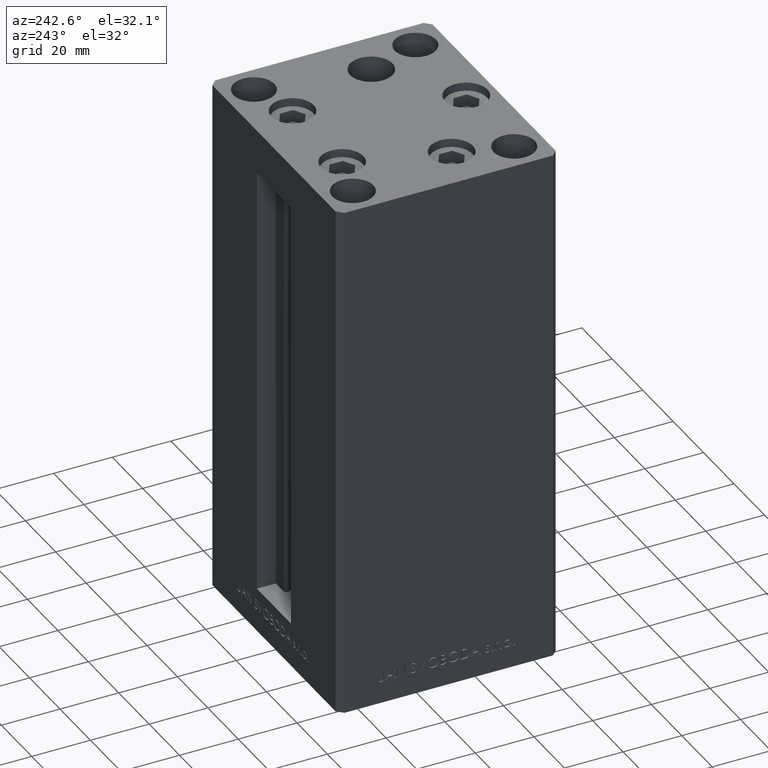
[diagram: clean part render]
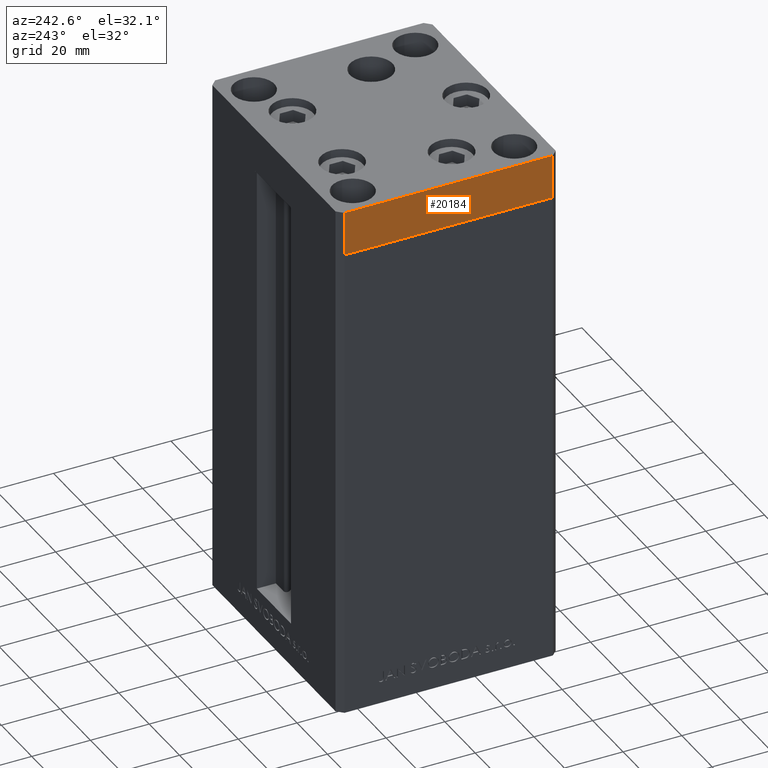
[diagram: same view with one face highlighted and labeled with its STEP entity id]
A machine part, auxiliary view. The second image highlights one B-rep face of the part: STEP entity #20184.
In plain terms, the highlighted planar face has unit normal (-1, -0, 0).
Its self-contained STEP definition (entity closure, byte-faithful):
#1008 = CARTESIAN_POINT ( 'NONE',  ( -42.50000000000000000, -35.50000000000000711, -15.00000000000000000 ) ) ;
#1484 = DIRECTION ( 'NONE',  ( 0.000000000000000000, 0.000000000000000000, 1.000000000000000000 ) ) ;
#1793 = EDGE_LOOP ( 'NONE', ( #45299, #43111, #8110, #47920 ) ) ;
#2662 = FACE_OUTER_BOUND ( 'NONE', #1793, .T. ) ;
#2695 = VERTEX_POINT ( 'NONE', #38412 ) ;
#6538 = AXIS2_PLACEMENT_3D ( 'NONE', #9347, #25187, #29136 ) ;
#6757 = VERTEX_POINT ( 'NONE', #13402 ) ;
#6833 = LINE ( 'NONE', #37736, #39202 ) ;
#7070 = DIRECTION ( 'NONE',  ( 0.000000000000000000, 0.000000000000000000, 1.000000000000000000 ) ) ;
#8110 = ORIENTED_EDGE ( 'NONE', *, *, #15498, .T. ) ;
#8155 = LINE ( 'NONE', #15827, #29271 ) ;
#9347 = CARTESIAN_POINT ( 'NONE',  ( -42.50000000000000711, 35.49999999999997158, -15.00000000000000000 ) ) ;
#10460 = VECTOR ( 'NONE', #17947, 1000.000000000000000 ) ;
#10593 = EDGE_CURVE ( 'NONE', #44240, #2695, #8155, .T. ) ;
#13402 = CARTESIAN_POINT ( 'NONE',  ( -42.50000000000000711, 35.49999999999997158, 0.000000000000000000 ) ) ;
#13509 = CARTESIAN_POINT ( 'NONE',  ( -42.50000000000000711, 35.49999999999997158, -15.00000000000000000 ) ) ;
#13783 = PLANE ( 'NONE',  #6538 ) ;
#15498 = EDGE_CURVE ( 'NONE', #41266, #44240, #21416, .T. ) ;
#15827 = CARTESIAN_POINT ( 'NONE',  ( -42.50000000000000000, -35.50000000000000711, -15.00000000000000000 ) ) ;
#17947 = DIRECTION ( 'NONE',  ( 9.773090005503140331E-17, -1.000000000000000000, 0.000000000000000000 ) ) ;
#20184 = ADVANCED_FACE ( 'NONE', ( #2662 ), #13783, .T. ) ;
#21416 = LINE ( 'NONE', #13509, #10460 ) ;
#21840 = VECTOR ( 'NONE', #41598, 1000.000000000000000 ) ;
#25187 = DIRECTION ( 'NONE',  ( -1.000000000000000000, -9.773090005503140331E-17, 0.000000000000000000 ) ) ;
#25784 = LINE ( 'NONE', #48305, #21840 ) ;
#29136 = DIRECTION ( 'NONE',  ( 9.773090005503140331E-17, -1.000000000000000000, 0.000000000000000000 ) ) ;
#29271 = VECTOR ( 'NONE', #1484, 1000.000000000000000 ) ;
#37736 = CARTESIAN_POINT ( 'NONE',  ( -42.50000000000000711, 35.49999999999997158, -15.00000000000000000 ) ) ;
#38412 = CARTESIAN_POINT ( 'NONE',  ( -42.50000000000000000, -35.50000000000000711, 0.000000000000000000 ) ) ;
#39202 = VECTOR ( 'NONE', #7070, 1000.000000000000000 ) ;
#39724 = EDGE_CURVE ( 'NONE', #6757, #2695, #25784, .T. ) ;
#41266 = VERTEX_POINT ( 'NONE', #47355 ) ;
#41598 = DIRECTION ( 'NONE',  ( 9.773090005503140331E-17, -1.000000000000000000, 0.000000000000000000 ) ) ;
#42637 = EDGE_CURVE ( 'NONE', #41266, #6757, #6833, .T. ) ;
#43111 = ORIENTED_EDGE ( 'NONE', *, *, #42637, .F. ) ;
#44240 = VERTEX_POINT ( 'NONE', #1008 ) ;
#45299 = ORIENTED_EDGE ( 'NONE', *, *, #39724, .F. ) ;
#47355 = CARTESIAN_POINT ( 'NONE',  ( -42.50000000000000711, 35.49999999999997158, -15.00000000000000000 ) ) ;
#47920 = ORIENTED_EDGE ( 'NONE', *, *, #10593, .T. ) ;
#48305 = CARTESIAN_POINT ( 'NONE',  ( -42.50000000000000711, 35.49999999999997158, 0.000000000000000000 ) ) ;